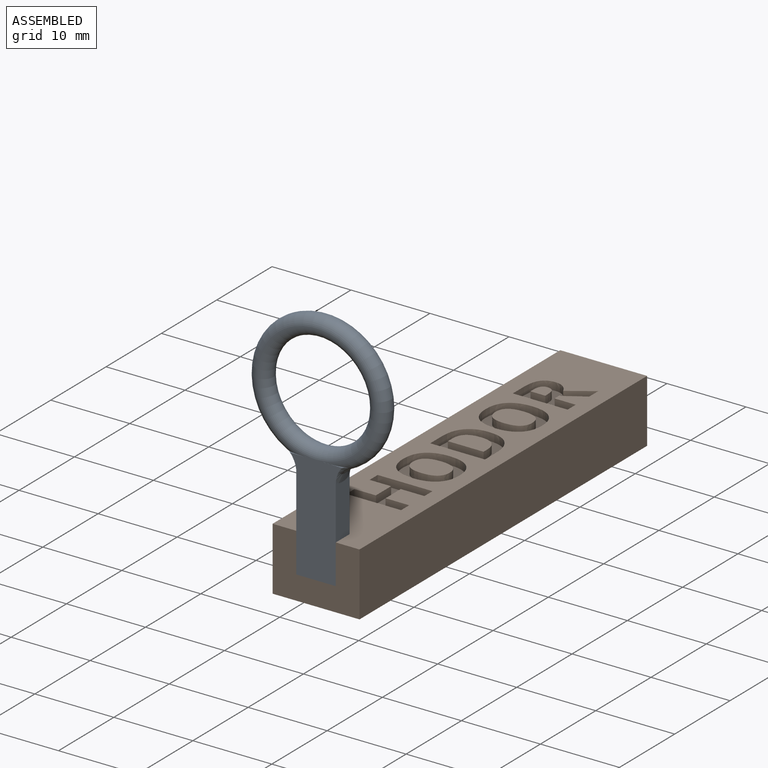
[diagram: assembled view]
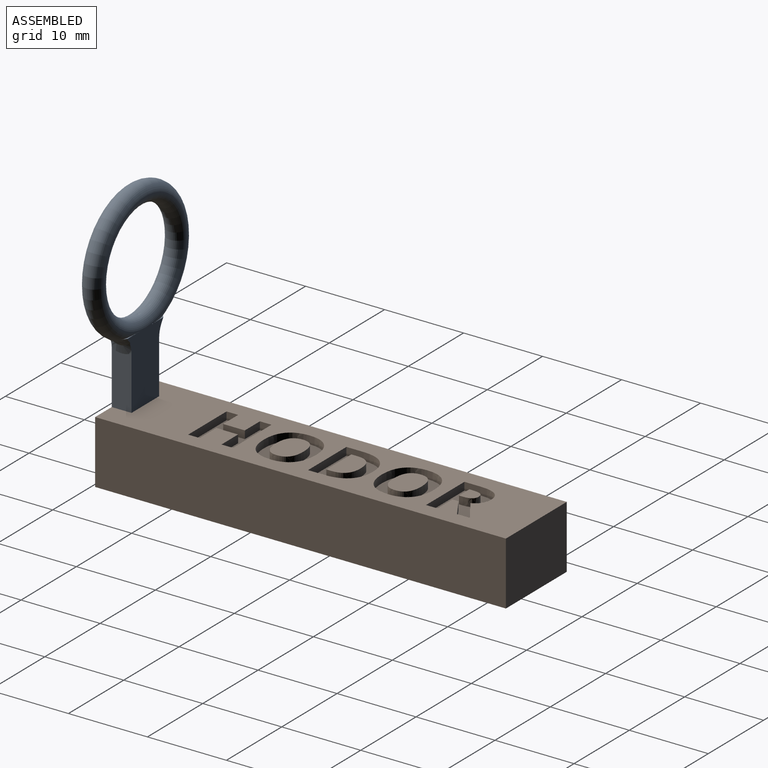
[diagram: assembled view, second angle]
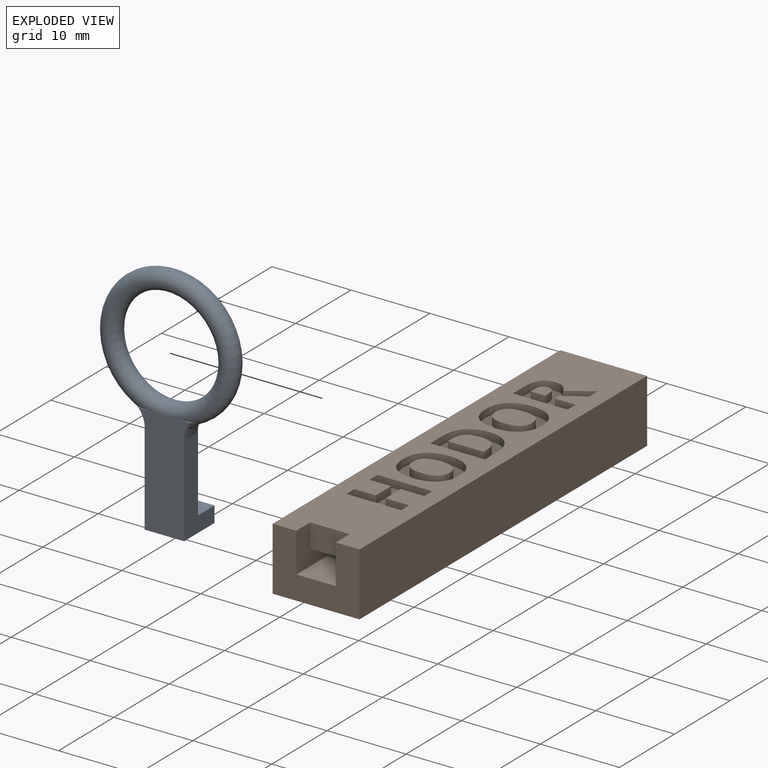
[diagram: exploded view]
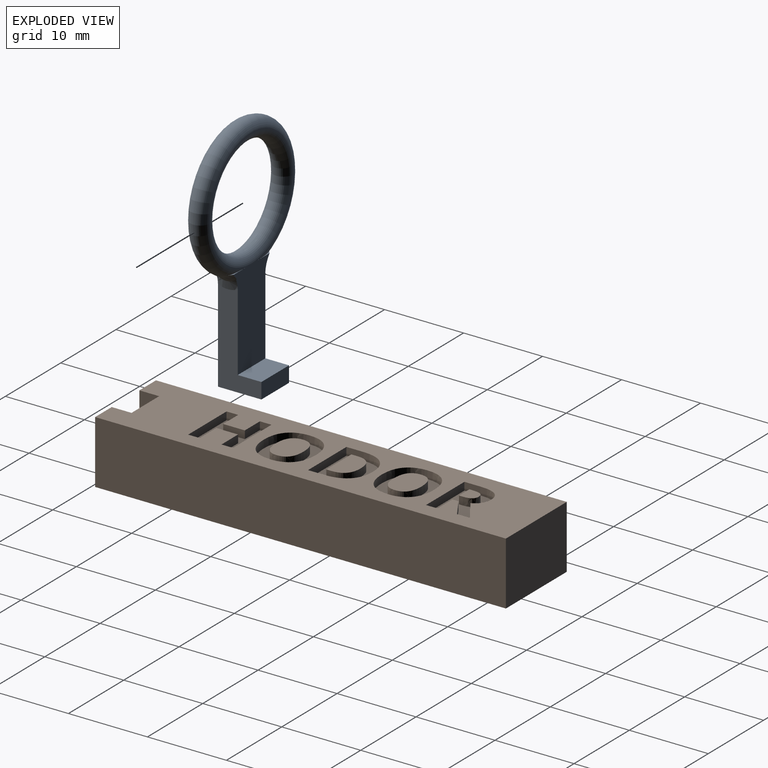
[diagram: exploded view, second angle]
ASSEMBLY  parts=2 mates=2
PART A: 14 faces, bbox 7.6x31.3x19.5 mm
  f0: plane 4.44x1.01mm, normal (0,1,0), area 0.2mm2, adj f6,f11,f13
  f1: plane 4.44x1.01mm, normal (0,1,0), area 0.2mm2, adj f6,f11,f12
  f2: plane 4.44x1.01mm, normal (0,1,0), area 0.2mm2, adj f10,f11,f12
  f3: plane 4.44x1.01mm, normal (0,1,0), area 0.2mm2, adj f10,f11,f13
  f4: plane 11.76x5.5mm, normal (0,0,1), area 34.9mm2, adj f6,f7,f8,f9,f10,f12
  f5: plane 11.76x5.5mm, normal (0,0,-1), area 34.9mm2, adj f6,f7,f8,f9,f10,f13
  f6: plane 12.13x6.91mm, normal (-1,0,0), area 59.8mm2, adj f0,f1,f4,f5,f7,f12,f13
  f7: plane 5x3mm, normal (0,1,0), area 15mm2, adj f4,f5,f6,f8
  f8: plane 5x2mm, normal (-1,0,0), area 10mm2, adj f4,f5,f7,f9
  f9: plane 5.5x5mm, normal (0,-1,0), area 27.5mm2, adj f4,f5,f8,f10
  f10: plane 14.13x6.91mm, normal (1,0,0), area 69.8mm2, adj f2,f3,f4,f5,f9,f12,f13
  f11: torus R=7.5mm, axis (1,0,0), area 347.9mm2, adj f0,f1,f2,f3,f12,f13
  f12: bspline ~5.6x2.74mm, area 6.8mm2, adj f1,f2,f4,f6,f10,f11
  f13: bspline ~5.49x2.66mm, area 6.8mm2, adj f0,f3,f5,f6,f10,f11
PART B: 92 faces, bbox 11x8x52 mm
  f0: plane 52x11mm, normal (0,-1,0), area 395.8mm2, adj f1,f2,f3,f5,f7,f9,f11,f12
  f1: plane 11x8mm, normal (0,0,-1), area 63mm2, adj f0,f2,f3,f4,f7,f8,f9
  f2: plane 52x8mm, normal (-1,0,0), area 416mm2, adj f0,f1,f4,f5
  f3: plane 52x8mm, normal (1,0,0), area 416mm2, adj f0,f1,f4,f5
  f4: plane 52x11mm, normal (0,1,0), area 572mm2, adj f1,f2,f3,f5
  f5: plane 11x8mm, normal (0,0,1), area 88mm2, adj f0,f2,f3,f4
  f6: plane 5x3mm, normal (0,1,0), area 15mm2, adj f7,f9,f10,f11
  f7: plane 5.5x5mm, normal (1,0,0), area 18.5mm2, adj f0,f1,f6,f8,f10,f11
  f8: plane 5.5x5mm, normal (0,-1,0), area 27.5mm2, adj f1,f7,f9,f10
  f9: plane 5.5x5mm, normal (-1,0,0), area 18.5mm2, adj f0,f1,f6,f8,f10,f11
  f10: plane 5x2mm, normal (0,0,-1), area 10mm2, adj f6,f7,f8,f9
  f11: plane 5x3mm, normal (0,0,-1), area 15mm2, adj f0,f6,f7,f9
  f12: plane 2.66x1mm, normal (0,0,-1), area 2.7mm2, adj f0,f13,f30,f31
  f13: plane 1x0.78mm, normal (-1,0,0), area 0.8mm2, adj f0,f12,f14,f31
  f14: plane 2.66x1.66mm, normal (-0.53,0,0.85), area 3.1mm2, adj f0,f13,f15,f31
  f15: plane 1.63x1mm, normal (-1,0,0), area 1.6mm2, adj f0,f14,f16,f31
  f16: extruded ~3.02x2.04mm, area 3.6mm2, adj f0,f15,f17,f31
  f17: extruded ~1x0.95mm, area 1.2mm2, adj f0,f16,f18,f31
  f18: extruded ~1.09x1mm, area 1.2mm2, adj f0,f17,f19,f31
  f19: extruded ~1.56x1mm, area 1.8mm2, adj f0,f18,f20,f31
  f20: extruded ~2.09x1mm, area 2.2mm2, adj f0,f19,f21,f31
  f21: plane 2.02x1mm, normal (1,0,0), area 2mm2, adj f0,f20,f22,f31
  f22: plane 6.94x1mm, normal (0,0,1), area 6.9mm2, adj f0,f21,f30,f31
  f23: plane 1x0.47mm, normal (1,0,0), area 0.5mm2, adj f24,f29,f31,f32
  f24: plane 1.87x1mm, normal (0,0,-1), area 1.9mm2, adj f23,f25,f31,f32
  f25: plane 1x0.45mm, normal (-1,0,0), area 0.4mm2, adj f24,f26,f31,f32
  f26: extruded ~1.05x1mm, area 1.1mm2, adj f25,f27,f31,f32
  f27: extruded ~1x0.7mm, area 0.8mm2, adj f26,f28,f31,f32
  f28: extruded ~1x0.73mm, area 0.8mm2, adj f27,f29,f31,f32
  f29: extruded ~1.03x1mm, area 1.1mm2, adj f23,f28,f31,f32
  f30: plane 1.47x1mm, normal (-1,0,0), area 1.5mm2, adj f0,f12,f22,f31
  f31: plane 6.94x5.54mm, normal (0,-1,0), area 23.5mm2, adj f12,f13,f14,f15,f16,f17,f18,f19
  f32: plane 1.87x1.84mm, normal (0,-1,0), area 3mm2, adj f23,f24,f25,f26,f27,f28,f29
  f33: extruded ~1.75x1mm, area 1.8mm2, adj f34,f46,f47,f89
  f34: extruded ~1.75x1mm, area 1.8mm2, adj f33,f35,f47,f89
  f35: extruded ~1.32x1mm, area 1.5mm2, adj f34,f36,f47,f89
  f36: extruded ~2.34x1.75mm, area 3.3mm2, adj f35,f37,f47,f89
  f37: extruded ~2.34x1.76mm, area 3.3mm2, adj f36,f46,f47,f89
  f38: extruded ~2.65x1mm, area 2.9mm2, adj f0,f39,f45,f47
  f39: extruded ~2.65x1mm, area 2.8mm2, adj f0,f38,f40,f47
  f40: extruded ~2.45x1mm, area 2.7mm2, adj f0,f39,f41,f47
  f41: extruded ~2.46x1mm, area 2.7mm2, adj f0,f40,f42,f47
  f42: extruded ~2.65x1mm, area 2.9mm2, adj f0,f41,f43,f47
  f43: extruded ~2.66x1mm, area 2.9mm2, adj f0,f42,f44,f47
  f44: extruded ~2.45x1mm, area 2.7mm2, adj f0,f43,f45,f47
  f45: extruded ~2.45x1mm, area 2.7mm2, adj f0,f38,f44,f47
  f46: extruded ~1.32x1mm, area 1.5mm2, adj f33,f37,f47,f89
  f47: plane 7.15x6.61mm, normal (0,-1,0), area 25.2mm2, adj f33,f34,f35,f36,f37,f38,f39,f40
  f48: extruded ~2.24x1.98mm, area 3.4mm2, adj f49,f59,f60,f90
  f49: extruded ~2.28x2.13mm, area 3.6mm2, adj f48,f50,f60,f90
  f50: plane 1x0.63mm, normal (1,0,0), area 0.6mm2, adj f49,f51,f60,f90
  f51: plane 4.52x1mm, normal (0,0,-1), area 4.5mm2, adj f50,f59,f60,f90
  f52: extruded ~2.63x1mm, area 2.9mm2, adj f0,f53,f58,f60
  f53: extruded ~2.51x1mm, area 2.8mm2, adj f0,f52,f54,f60
  f54: extruded ~2.64x1mm, area 2.9mm2, adj f0,f53,f55,f60
  f55: plane 2.18x1mm, normal (1,0,0), area 2.2mm2, adj f0,f54,f56,f60
  f56: plane 6.94x1mm, normal (0,0,1), area 6.9mm2, adj f0,f55,f57,f60
  f57: plane 1.97x1mm, normal (-1,0,0), area 2mm2, adj f0,f56,f58,f60
  f58: extruded ~2.82x1mm, area 3mm2, adj f0,f52,f57,f60
  f59: plane 1x0.78mm, normal (-1,0,0), area 0.8mm2, adj f48,f51,f60,f90
  f60: plane 6.94x5.76mm, normal (0,-1,0), area 24.5mm2, adj f48,f49,f50,f51,f52,f53,f54,f55
  f61: extruded ~1.75x1mm, area 1.8mm2, adj f62,f74,f75,f91
  f62: extruded ~1.75x1mm, area 1.8mm2, adj f61,f63,f75,f91
  f63: extruded ~1.32x1mm, area 1.5mm2, adj f62,f64,f75,f91
  f64: extruded ~2.34x1.75mm, area 3.3mm2, adj f63,f65,f75,f91
  f65: extruded ~2.34x1.76mm, area 3.3mm2, adj f64,f74,f75,f91
  f66: extruded ~2.65x1mm, area 2.9mm2, adj f0,f67,f73,f75
  f67: extruded ~2.65x1mm, area 2.8mm2, adj f0,f66,f68,f75
  f68: extruded ~2.45x1mm, area 2.7mm2, adj f0,f67,f69,f75
  f69: extruded ~2.46x1mm, area 2.7mm2, adj f0,f68,f70,f75
  f70: extruded ~2.65x1mm, area 2.9mm2, adj f0,f69,f71,f75
  f71: extruded ~2.66x1mm, area 2.9mm2, adj f0,f70,f72,f75
  f72: extruded ~2.45x1mm, area 2.7mm2, adj f0,f71,f73,f75
  f73: extruded ~2.45x1mm, area 2.7mm2, adj f0,f66,f72,f75
  f74: extruded ~1.32x1mm, area 1.5mm2, adj f61,f65,f75,f91
  f75: plane 7.15x6.61mm, normal (0,-1,0), area 25.2mm2, adj f61,f62,f63,f64,f65,f66,f67,f68
  f76: plane 1.47x1mm, normal (-1,0,0), area 1.5mm2, adj f0,f77,f87,f88
  f77: plane 6.94x1mm, normal (0,0,-1), area 6.9mm2, adj f0,f76,f78,f88
  f78: plane 1.47x1mm, normal (1,0,0), area 1.5mm2, adj f0,f77,f79,f88
  f79: plane 2.72x1mm, normal (0,0,1), area 2.7mm2, adj f0,f78,f80,f88
  f80: plane 2.75x1mm, normal (1,0,0), area 2.7mm2, adj f0,f79,f81,f88
  f81: plane 2.72x1mm, normal (0,0,-1), area 2.7mm2, adj f0,f80,f82,f88
  f82: plane 1.47x1mm, normal (1,0,0), area 1.5mm2, adj f0,f81,f83,f88
  f83: plane 6.94x1mm, normal (0,0,1), area 6.9mm2, adj f0,f82,f84,f88
  f84: plane 1.47x1mm, normal (-1,0,0), area 1.5mm2, adj f0,f83,f85,f88
  f85: plane 3x1mm, normal (0,0,-1), area 3mm2, adj f0,f84,f86,f88
  f86: plane 2.75x1mm, normal (-1,0,0), area 2.7mm2, adj f0,f85,f87,f88
  f87: plane 3x1mm, normal (0,0,1), area 3mm2, adj f0,f76,f86,f88
  f88: plane 6.94x5.69mm, normal (0,-1,0), area 23.8mm2, adj f76,f77,f78,f79,f80,f81,f82,f83
  f89: plane 4.69x3.52mm, normal (0,-1,0), area 13.7mm2, adj f33,f34,f35,f36,f37,f46
  f90: plane 4.52x2.76mm, normal (0,-1,0), area 10.9mm2, adj f48,f49,f50,f51,f59
  f91: plane 4.69x3.52mm, normal (0,-1,0), area 13.7mm2, adj f61,f62,f63,f64,f65,f74
PLACE A rot(axis=(0.58,-0.58,-0.58),120deg) t=(-26.06,-49.76,46.25)mm
PLACE B rot(axis=(-1,0,0),90deg) t=(-34.06,-49.76,37.51)mm fixed
MATE planar A.f9 <-> B.f8  axis (0,0,-1) through (-28.56,-47.01,32.51)mm
MATE fastened A.f8 <-> B.f10  axis (0,1,0) through (-28.56,-44.26,33.51)mm
